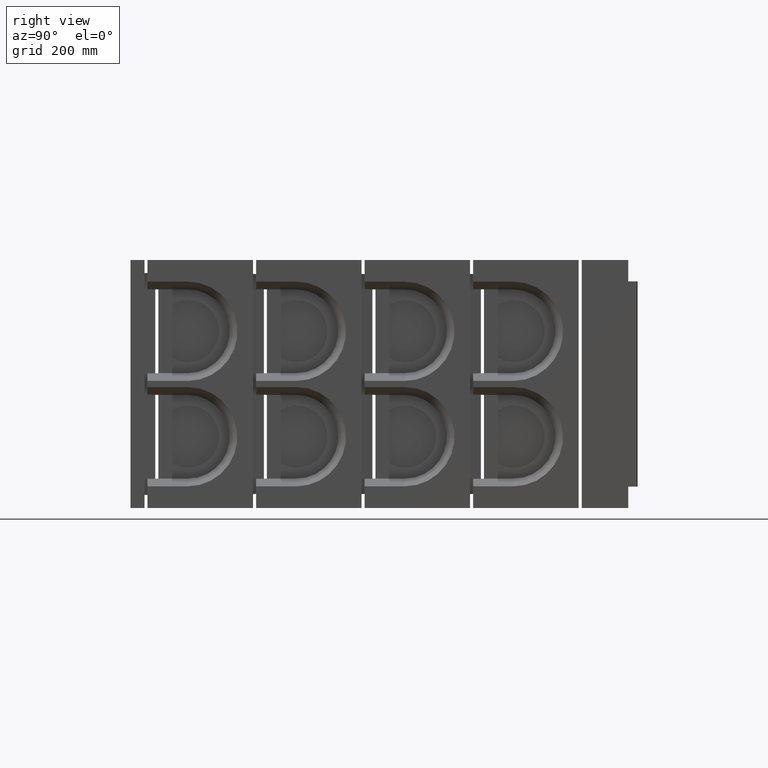
[diagram: clean part render]
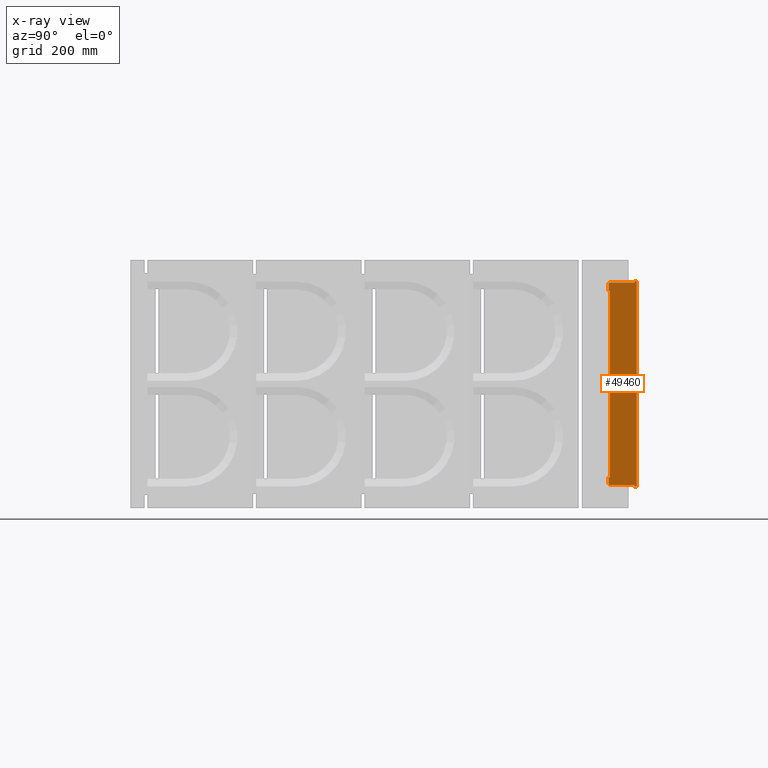
[diagram: x-ray — body ghosted, one internal face saturated and labeled with its STEP entity id]
A machine part, right view, then the same camera in x-ray: the body is ghosted and one INTERNAL B-rep face — a face not visible from any outside direction — is saturated and labeled: STEP entity #49460.
In plain terms, the highlighted planar face has unit normal (-1, -0, 0).
Its self-contained STEP definition (entity closure, byte-faithful):
#371 = VERTEX_POINT ( 'NONE', #16910 ) ;
#1305 = LINE ( 'NONE', #50306, #46372 ) ;
#1533 = VECTOR ( 'NONE', #51817, 1000.000000000000000 ) ;
#1739 = LINE ( 'NONE', #23413, #32393 ) ;
#2073 = EDGE_CURVE ( 'NONE', #6966, #5466, #1739, .T. ) ;
#2177 = DIRECTION ( 'NONE',  ( -0.0000000000000000000, 1.000000000000000000, -0.0000000000000000000 ) ) ;
#2186 = VECTOR ( 'NONE', #17232, 1000.000000000000000 ) ;
#2331 = AXIS2_PLACEMENT_3D ( 'NONE', #6816, #26803, #42642 ) ;
#2372 = CIRCLE ( 'NONE', #2331, 4.000000000000003553 ) ;
#3387 = CARTESIAN_POINT ( 'NONE',  ( -651.5000000000002274, 1625.000000000000000, 327.0000000000006821 ) ) ;
#4372 = VERTEX_POINT ( 'NONE', #10261 ) ;
#5251 = CARTESIAN_POINT ( 'NONE',  ( -651.5000000000002274, 1542.000000000000000, 327.0000000000006253 ) ) ;
#5277 = EDGE_CURVE ( 'NONE', #6933, #42546, #13008, .T. ) ;
#5285 = LINE ( 'NONE', #32453, #2186 ) ;
#5466 = VERTEX_POINT ( 'NONE', #19933 ) ;
#5548 = ORIENTED_EDGE ( 'NONE', *, *, #35614, .T. ) ;
#6052 = CARTESIAN_POINT ( 'NONE',  ( -651.5000000000002274, 1544.000000000000000, -299.9999999999993179 ) ) ;
#6065 = DIRECTION ( 'NONE',  ( -1.000000000000000000, -0.0000000000000000000, 0.0000000000000000000 ) ) ;
#6329 = DIRECTION ( 'NONE',  ( 0.0000000000000000000, 0.0000000000000000000, 1.000000000000000000 ) ) ;
#6816 = CARTESIAN_POINT ( 'NONE',  ( -651.5000000000002274, 1546.000000000000000, -322.9999999999993179 ) ) ;
#6933 = VERTEX_POINT ( 'NONE', #18773 ) ;
#6966 = VERTEX_POINT ( 'NONE', #42499 ) ;
#7253 = DIRECTION ( 'NONE',  ( 0.0000000000000000000, -1.000000000000000000, 0.0000000000000000000 ) ) ;
#7837 = EDGE_CURVE ( 'NONE', #5466, #34695, #26446, .T. ) ;
#8087 = VECTOR ( 'NONE', #34997, 1000.000000000000000 ) ;
#8154 = VECTOR ( 'NONE', #32545, 1000.000000000000000 ) ;
#8172 = ORIENTED_EDGE ( 'NONE', *, *, #32461, .T. ) ;
#8244 = LINE ( 'NONE', #28627, #27082 ) ;
#8452 = CARTESIAN_POINT ( 'NONE',  ( -651.5000000000002274, 1632.000000000000227, 331.0000000000006821 ) ) ;
#8917 = VERTEX_POINT ( 'NONE', #43407 ) ;
#9173 = CARTESIAN_POINT ( 'NONE',  ( -651.5000000000002274, 1625.000000000000000, 331.0000000000006821 ) ) ;
#9377 = VERTEX_POINT ( 'NONE', #40339 ) ;
#9409 = EDGE_CURVE ( 'NONE', #34134, #27244, #20954, .T. ) ;
#9951 = VERTEX_POINT ( 'NONE', #34959 ) ;
#10087 = VECTOR ( 'NONE', #41037, 1000.000000000000000 ) ;
#10107 = CARTESIAN_POINT ( 'NONE',  ( -651.5000000000002274, 1546.000000000000000, -299.9999999999993179 ) ) ;
#10261 = CARTESIAN_POINT ( 'NONE',  ( -651.5000000000002274, 1547.000000000000000, 300.1000000000007049 ) ) ;
#10300 = LINE ( 'NONE', #17784, #44662 ) ;
#10528 = DIRECTION ( 'NONE',  ( -1.000000000000000000, -0.0000000000000000000, 0.0000000000000000000 ) ) ;
#10666 = ORIENTED_EDGE ( 'NONE', *, *, #15341, .F. ) ;
#12388 = ORIENTED_EDGE ( 'NONE', *, *, #2073, .F. ) ;
#12927 = CARTESIAN_POINT ( 'NONE',  ( -651.5000000000002274, 1547.000000000000000, 331.0000000000006821 ) ) ;
#13008 = LINE ( 'NONE', #5251, #13674 ) ;
#13086 = CARTESIAN_POINT ( 'NONE',  ( -651.5000000000002274, 1546.000000000000000, 331.0000000000006821 ) ) ;
#13674 = VECTOR ( 'NONE', #28725, 1000.000000000000000 ) ;
#13784 = CARTESIAN_POINT ( 'NONE',  ( -651.5000000000002274, 1542.000000000000000, -322.9999999999993179 ) ) ;
#14898 = PLANE ( 'NONE',  #24100 ) ;
#15341 = EDGE_CURVE ( 'NONE', #4372, #6966, #37554, .T. ) ;
#15447 = ORIENTED_EDGE ( 'NONE', *, *, #5277, .F. ) ;
#15925 = CARTESIAN_POINT ( 'NONE',  ( -651.5000000000002274, 1546.000000000000000, 327.0000000000006821 ) ) ;
#16451 = CARTESIAN_POINT ( 'NONE',  ( -651.5000000000002274, 1625.000000000000000, 331.0000000000006821 ) ) ;
#16910 = CARTESIAN_POINT ( 'NONE',  ( -651.5000000000002274, 1546.000000000000000, -326.9999999999993747 ) ) ;
#17232 = DIRECTION ( 'NONE',  ( 0.0000000000000000000, 1.000000000000000000, 0.0000000000000000000 ) ) ;
#17462 = ORIENTED_EDGE ( 'NONE', *, *, #19569, .T. ) ;
#17472 = CARTESIAN_POINT ( 'NONE',  ( -651.5000000000002274, 1544.000000000000000, -330.9999999999993747 ) ) ;
#17619 = VERTEX_POINT ( 'NONE', #15925 ) ;
#17784 = CARTESIAN_POINT ( 'NONE',  ( -651.5000000000002274, 1544.000000000000000, 331.0000000000006821 ) ) ;
#17938 = EDGE_CURVE ( 'NONE', #27244, #26847, #51049, .T. ) ;
#18154 = ORIENTED_EDGE ( 'NONE', *, *, #46978, .T. ) ;
#18279 = ORIENTED_EDGE ( 'NONE', *, *, #27687, .T. ) ;
#18773 = CARTESIAN_POINT ( 'NONE',  ( -651.5000000000002274, 1542.000000000000000, 323.0000000000006821 ) ) ;
#18962 = CARTESIAN_POINT ( 'NONE',  ( -651.5000000000002274, 1632.000000000000227, -330.9999999999993747 ) ) ;
#19115 = VECTOR ( 'NONE', #21540, 1000.000000000000000 ) ;
#19270 = LINE ( 'NONE', #6052, #30555 ) ;
#19569 = EDGE_CURVE ( 'NONE', #40932, #8917, #1305, .T. ) ;
#19933 = CARTESIAN_POINT ( 'NONE',  ( -651.5000000000002274, 1546.000000000000000, 300.0000000000006821 ) ) ;
#20060 = LINE ( 'NONE', #46383, #8087 ) ;
#20635 = ORIENTED_EDGE ( 'NONE', *, *, #20804, .T. ) ;
#20804 = EDGE_CURVE ( 'NONE', #371, #40932, #2372, .T. ) ;
#20954 = LINE ( 'NONE', #16451, #1533 ) ;
#21105 = CARTESIAN_POINT ( 'NONE',  ( -651.5000000000002274, 1544.000000000000000, 327.0000000000006821 ) ) ;
#21540 = DIRECTION ( 'NONE',  ( -0.0000000000000000000, 1.000000000000000000, 0.0000000000000000000 ) ) ;
#22131 = EDGE_CURVE ( 'NONE', #45914, #17619, #31578, .T. ) ;
#22860 = VECTOR ( 'NONE', #34737, 1000.000000000000000 ) ;
#23346 = ORIENTED_EDGE ( 'NONE', *, *, #47932, .T. ) ;
#23359 = EDGE_CURVE ( 'NONE', #42546, #4372, #51851, .T. ) ;
#23413 = CARTESIAN_POINT ( 'NONE',  ( -651.5000000000002274, 1544.000000000000000, 300.0000000000006821 ) ) ;
#24100 = AXIS2_PLACEMENT_3D ( 'NONE', #50214, #10528, #6329 ) ;
#24655 = VERTEX_POINT ( 'NONE', #8452 ) ;
#25203 = VECTOR ( 'NONE', #42927, 1000.000000000000000 ) ;
#25978 = VECTOR ( 'NONE', #32777, 1000.000000000000000 ) ;
#26038 = DIRECTION ( 'NONE',  ( 0.0000000000000000000, 0.0000000000000000000, 1.000000000000000000 ) ) ;
#26286 = CARTESIAN_POINT ( 'NONE',  ( -651.5000000000002274, 1625.000000000000000, -330.9999999999993747 ) ) ;
#26405 = EDGE_CURVE ( 'NONE', #41358, #24655, #10300, .T. ) ;
#26446 = LINE ( 'NONE', #13086, #10087 ) ;
#26803 = DIRECTION ( 'NONE',  ( -1.000000000000000000, -0.0000000000000000000, 0.0000000000000000000 ) ) ;
#26847 = VERTEX_POINT ( 'NONE', #18962 ) ;
#27082 = VECTOR ( 'NONE', #36611, 1000.000000000000000 ) ;
#27244 = VERTEX_POINT ( 'NONE', #26286 ) ;
#27433 = CARTESIAN_POINT ( 'NONE',  ( -651.5000000000002274, 1547.000000000000227, 331.0000000000006821 ) ) ;
#27687 = EDGE_CURVE ( 'NONE', #6933, #17619, #32083, .T. ) ;
#28008 = EDGE_LOOP ( 'NONE', ( #50055, #50922, #23346, #20635, #17462, #46183, #5548, #8172, #30309, #12388, #10666, #38599, #15447, #18279, #49189, #18154, #43221, #42942 ) ) ;
#28118 = CARTESIAN_POINT ( 'NONE',  ( -651.5000000000002274, 1542.000000000000000, 300.1000000000007049 ) ) ;
#28465 = AXIS2_PLACEMENT_3D ( 'NONE', #37850, #6065, #26038 ) ;
#28627 = CARTESIAN_POINT ( 'NONE',  ( -651.5000000000002274, 1625.000000000000000, 331.0000000000006821 ) ) ;
#28725 = DIRECTION ( 'NONE',  ( 0.0000000000000000000, 1.612196539011907001E-17, -1.000000000000000000 ) ) ;
#30309 = ORIENTED_EDGE ( 'NONE', *, *, #7837, .F. ) ;
#30555 = VECTOR ( 'NONE', #50480, 1000.000000000000000 ) ;
#31578 = LINE ( 'NONE', #21105, #25978 ) ;
#32083 = CIRCLE ( 'NONE', #28465, 4.000000000000003553 ) ;
#32393 = VECTOR ( 'NONE', #7253, 1000.000000000000000 ) ;
#32453 = CARTESIAN_POINT ( 'NONE',  ( -651.5000000000002274, 1547.000000000000000, -300.0999999999993406 ) ) ;
#32461 = EDGE_CURVE ( 'NONE', #9951, #34695, #19270, .T. ) ;
#32545 = DIRECTION ( 'NONE',  ( 0.0000000000000000000, 1.284980352575414178E-16, -1.000000000000000000 ) ) ;
#32777 = DIRECTION ( 'NONE',  ( 0.0000000000000000000, -1.000000000000000000, 0.0000000000000000000 ) ) ;
#33567 = EDGE_CURVE ( 'NONE', #8917, #9377, #5285, .T. ) ;
#34134 = VERTEX_POINT ( 'NONE', #44956 ) ;
#34285 = VECTOR ( 'NONE', #2177, 1000.000000000000000 ) ;
#34695 = VERTEX_POINT ( 'NONE', #10107 ) ;
#34737 = DIRECTION ( 'NONE',  ( 0.0000000000000000000, 1.284980352575414178E-16, 1.000000000000000000 ) ) ;
#34959 = CARTESIAN_POINT ( 'NONE',  ( -651.5000000000002274, 1547.000000000000000, -299.9999999999993747 ) ) ;
#34997 = DIRECTION ( 'NONE',  ( 0.0000000000000000000, -1.000000000000000000, 0.0000000000000000000 ) ) ;
#35614 = EDGE_CURVE ( 'NONE', #9377, #9951, #42194, .T. ) ;
#36611 = DIRECTION ( 'NONE',  ( 0.0000000000000000000, 0.0000000000000000000, 1.000000000000000000 ) ) ;
#37153 = DIRECTION ( 'NONE',  ( -0.0000000000000000000, 1.000000000000000000, 0.0000000000000000000 ) ) ;
#37554 = LINE ( 'NONE', #12927, #8154 ) ;
#37845 = FACE_OUTER_BOUND ( 'NONE', #28008, .T. ) ;
#37850 = CARTESIAN_POINT ( 'NONE',  ( -651.5000000000002274, 1546.000000000000000, 323.0000000000006821 ) ) ;
#38381 = DIRECTION ( 'NONE',  ( 0.0000000000000000000, 1.612196539011907001E-17, 1.000000000000000000 ) ) ;
#38599 = ORIENTED_EDGE ( 'NONE', *, *, #23359, .F. ) ;
#39602 = CARTESIAN_POINT ( 'NONE',  ( -651.5000000000002274, 1632.000000000000227, 331.0000000000006821 ) ) ;
#40339 = CARTESIAN_POINT ( 'NONE',  ( -651.5000000000002274, 1547.000000000000000, -300.0999999999992838 ) ) ;
#40932 = VERTEX_POINT ( 'NONE', #13784 ) ;
#41037 = DIRECTION ( 'NONE',  ( -0.0000000000000000000, -0.0000000000000000000, -1.000000000000000000 ) ) ;
#41358 = VERTEX_POINT ( 'NONE', #9173 ) ;
#42194 = LINE ( 'NONE', #27433, #22860 ) ;
#42499 = CARTESIAN_POINT ( 'NONE',  ( -651.5000000000002274, 1547.000000000000000, 300.0000000000006821 ) ) ;
#42546 = VERTEX_POINT ( 'NONE', #28118 ) ;
#42642 = DIRECTION ( 'NONE',  ( 0.0000000000000000000, 0.0000000000000000000, 1.000000000000000000 ) ) ;
#42927 = DIRECTION ( 'NONE',  ( -0.0000000000000000000, -0.0000000000000000000, -1.000000000000000000 ) ) ;
#42942 = ORIENTED_EDGE ( 'NONE', *, *, #44882, .T. ) ;
#43221 = ORIENTED_EDGE ( 'NONE', *, *, #26405, .T. ) ;
#43407 = CARTESIAN_POINT ( 'NONE',  ( -651.5000000000002274, 1542.000000000000000, -300.0999999999993406 ) ) ;
#44662 = VECTOR ( 'NONE', #37153, 1000.000000000000000 ) ;
#44882 = EDGE_CURVE ( 'NONE', #24655, #26847, #46436, .T. ) ;
#44956 = CARTESIAN_POINT ( 'NONE',  ( -651.5000000000002274, 1625.000000000000000, -326.9999999999993747 ) ) ;
#45914 = VERTEX_POINT ( 'NONE', #3387 ) ;
#46183 = ORIENTED_EDGE ( 'NONE', *, *, #33567, .T. ) ;
#46372 = VECTOR ( 'NONE', #38381, 1000.000000000000000 ) ;
#46383 = CARTESIAN_POINT ( 'NONE',  ( -651.5000000000002274, 1544.000000000000000, -326.9999999999993747 ) ) ;
#46436 = LINE ( 'NONE', #39602, #25203 ) ;
#46978 = EDGE_CURVE ( 'NONE', #45914, #41358, #8244, .T. ) ;
#47932 = EDGE_CURVE ( 'NONE', #34134, #371, #20060, .T. ) ;
#49189 = ORIENTED_EDGE ( 'NONE', *, *, #22131, .F. ) ;
#49460 = ADVANCED_FACE ( 'NONE', ( #37845 ), #14898, .T. ) ;
#50055 = ORIENTED_EDGE ( 'NONE', *, *, #17938, .F. ) ;
#50090 = CARTESIAN_POINT ( 'NONE',  ( -651.5000000000002274, 1547.000000000000000, 300.1000000000007049 ) ) ;
#50214 = CARTESIAN_POINT ( 'NONE',  ( -651.5000000000002274, 1544.000000000000000, 331.0000000000006821 ) ) ;
#50306 = CARTESIAN_POINT ( 'NONE',  ( -651.5000000000002274, 1542.000000000000000, -326.9999999999993179 ) ) ;
#50480 = DIRECTION ( 'NONE',  ( 0.0000000000000000000, -1.000000000000000000, 0.0000000000000000000 ) ) ;
#50922 = ORIENTED_EDGE ( 'NONE', *, *, #9409, .F. ) ;
#51049 = LINE ( 'NONE', #17472, #19115 ) ;
#51817 = DIRECTION ( 'NONE',  ( -0.0000000000000000000, -0.0000000000000000000, -1.000000000000000000 ) ) ;
#51851 = LINE ( 'NONE', #50090, #34285 ) ;